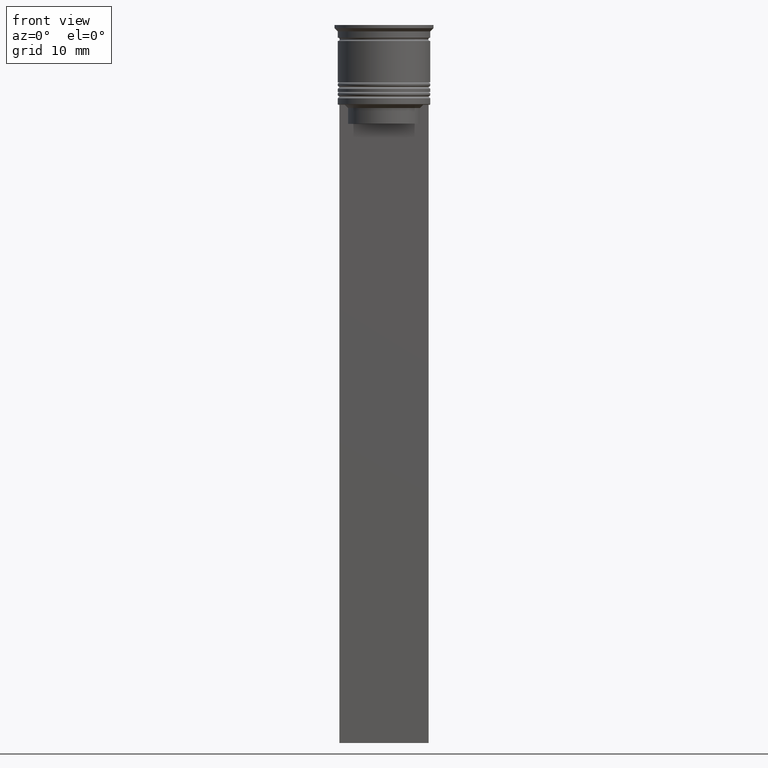
[diagram: clean part render]
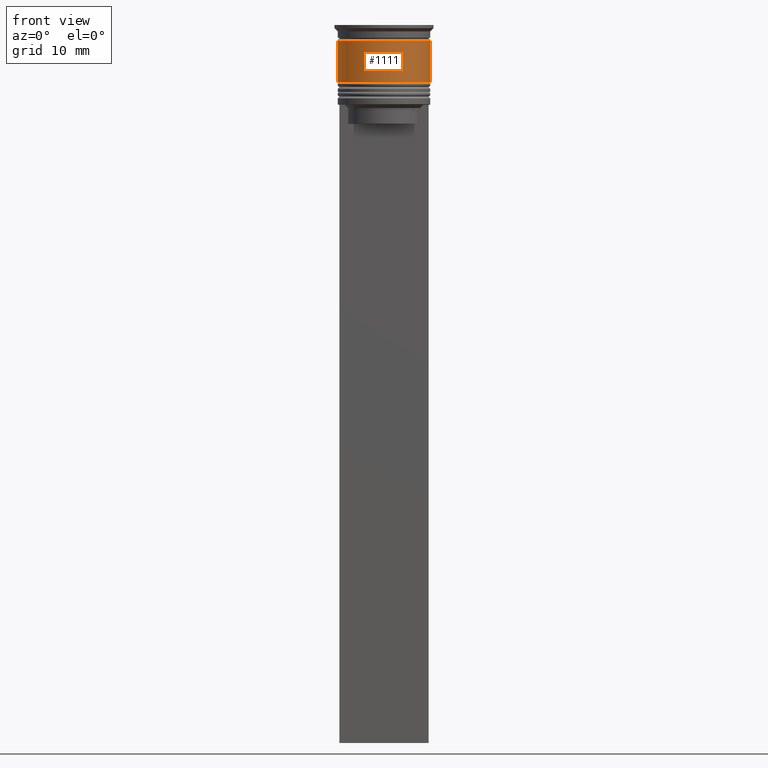
[diagram: same view with one face highlighted and labeled with its STEP entity id]
A machine part, front view. The second image highlights one B-rep face of the part: STEP entity #1111.
In plain terms, the highlighted cylindrical surface (partial cylindrical patch) has radius 7.25 mm, axis along (-0, -0, 1).
Its self-contained STEP definition (entity closure, byte-faithful):
#78 = AXIS2_PLACEMENT_3D ( 'NONE', #2237, #1671, #983 ) ;
#232 = DIRECTION ( 'NONE',  ( -0.000000000000000000, -0.000000000000000000, 1.000000000000000000 ) ) ;
#259 = VECTOR ( 'NONE', #2083, 1000.000000000000000 ) ;
#319 = ORIENTED_EDGE ( 'NONE', *, *, #1441, .T. ) ;
#357 = EDGE_CURVE ( 'NONE', #1551, #786, #2265, .T. ) ;
#411 = LINE ( 'NONE', #2040, #491 ) ;
#429 = FACE_OUTER_BOUND ( 'NONE', #1814, .T. ) ;
#491 = VECTOR ( 'NONE', #1090, 1000.000000000000000 ) ;
#560 = CIRCLE ( 'NONE', #1309, 7.250000000000000888 ) ;
#761 = CARTESIAN_POINT ( 'NONE',  ( 0.000000000000000000, 0.000000000000000000, 0.000000000000000000 ) ) ;
#786 = VERTEX_POINT ( 'NONE', #1866 ) ;
#838 = ORIENTED_EDGE ( 'NONE', *, *, #2262, .F. ) ;
#983 = DIRECTION ( 'NONE',  ( 1.000000000000000000, 0.000000000000000000, 0.000000000000000000 ) ) ;
#1062 = CARTESIAN_POINT ( 'NONE',  ( 7.249999999999997335, 0.000000000000000000, -2.500000000000000444 ) ) ;
#1090 = DIRECTION ( 'NONE',  ( -0.000000000000000000, -0.000000000000000000, 1.000000000000000000 ) ) ;
#1111 = ADVANCED_FACE ( 'NONE', ( #429 ), #1117, .T. ) ;
#1117 = CYLINDRICAL_SURFACE ( 'NONE', #2296, 7.249999999999999112 ) ;
#1158 = CARTESIAN_POINT ( 'NONE',  ( 7.250000000000000888, 0.000000000000000000, -9.000000000000001776 ) ) ;
#1178 = CARTESIAN_POINT ( 'NONE',  ( -7.249999999999999112, 8.878689293818310074E-16, 0.000000000000000000 ) ) ;
#1211 = EDGE_CURVE ( 'NONE', #1551, #1729, #560, .T. ) ;
#1309 = AXIS2_PLACEMENT_3D ( 'NONE', #1707, #1739, #1367 ) ;
#1331 = DIRECTION ( 'NONE',  ( 1.000000000000000000, 0.000000000000000000, 0.000000000000000000 ) ) ;
#1367 = DIRECTION ( 'NONE',  ( 1.000000000000000000, 0.000000000000000000, 0.000000000000000000 ) ) ;
#1403 = ORIENTED_EDGE ( 'NONE', *, *, #357, .F. ) ;
#1441 = EDGE_CURVE ( 'NONE', #1729, #1664, #411, .T. ) ;
#1551 = VERTEX_POINT ( 'NONE', #1726 ) ;
#1566 = ORIENTED_EDGE ( 'NONE', *, *, #1211, .T. ) ;
#1578 = CIRCLE ( 'NONE', #78, 7.249999999999997335 ) ;
#1664 = VERTEX_POINT ( 'NONE', #1062 ) ;
#1671 = DIRECTION ( 'NONE',  ( -0.000000000000000000, -0.000000000000000000, 1.000000000000000000 ) ) ;
#1707 = CARTESIAN_POINT ( 'NONE',  ( 0.000000000000000000, 0.000000000000000000, -9.000000000000001776 ) ) ;
#1726 = CARTESIAN_POINT ( 'NONE',  ( -7.250000000000000888, 8.878689293818312046E-16, -9.000000000000001776 ) ) ;
#1729 = VERTEX_POINT ( 'NONE', #1158 ) ;
#1739 = DIRECTION ( 'NONE',  ( -0.000000000000000000, -0.000000000000000000, 1.000000000000000000 ) ) ;
#1814 = EDGE_LOOP ( 'NONE', ( #1403, #1566, #319, #838 ) ) ;
#1866 = CARTESIAN_POINT ( 'NONE',  ( -7.249999999999997335, 8.878689293818308102E-16, -2.500000000000000444 ) ) ;
#2040 = CARTESIAN_POINT ( 'NONE',  ( 7.249999999999999112, 0.000000000000000000, 0.000000000000000000 ) ) ;
#2083 = DIRECTION ( 'NONE',  ( -0.000000000000000000, -0.000000000000000000, 1.000000000000000000 ) ) ;
#2237 = CARTESIAN_POINT ( 'NONE',  ( 0.000000000000000000, 0.000000000000000000, -2.500000000000000444 ) ) ;
#2262 = EDGE_CURVE ( 'NONE', #786, #1664, #1578, .T. ) ;
#2265 = LINE ( 'NONE', #1178, #259 ) ;
#2296 = AXIS2_PLACEMENT_3D ( 'NONE', #761, #232, #1331 ) ;